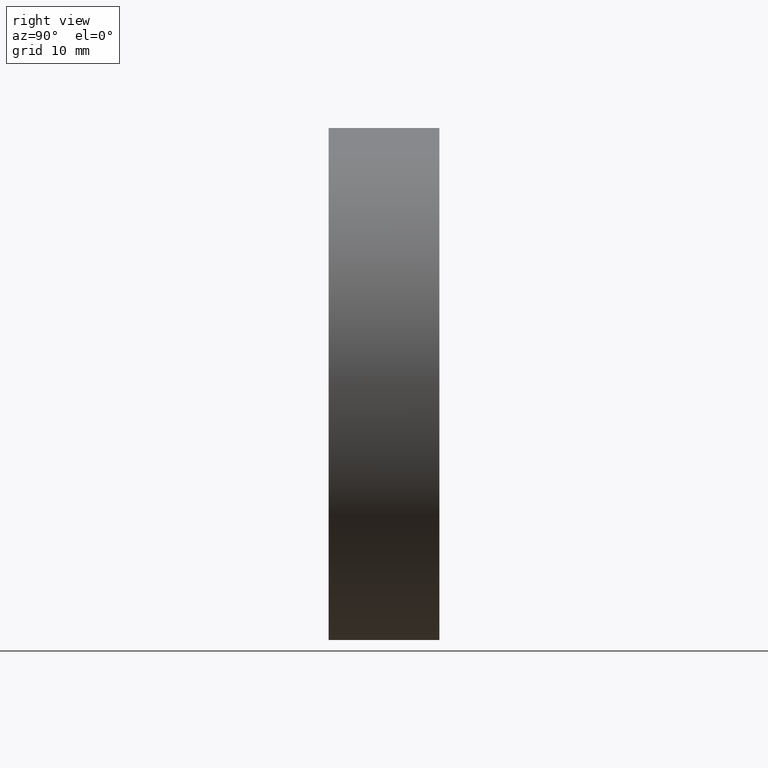
[diagram: clean part render]
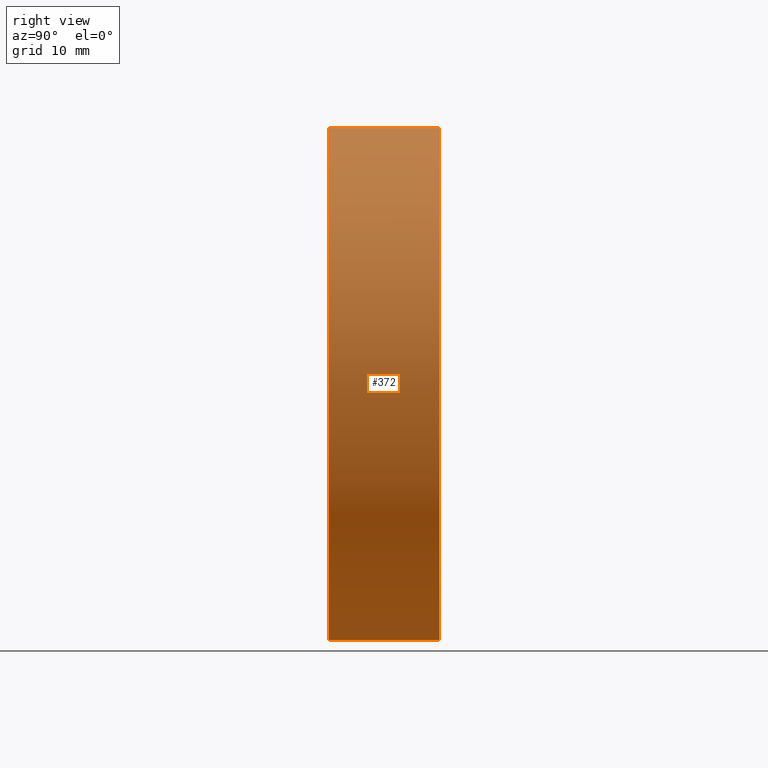
[diagram: same view with one face highlighted and labeled with its STEP entity id]
A machine part, right view. The second image highlights one B-rep face of the part: STEP entity #372.
In plain terms, the highlighted cylindrical surface (partial cylindrical patch) has radius 25.4 mm, axis along (-0, 1, -0).
Its self-contained STEP definition (entity closure, byte-faithful):
#26 = AXIS2_PLACEMENT_3D ( 'NONE', #393, #123, #116 ) ;
#27 = VECTOR ( 'NONE', #204, 1000.000000000000000 ) ;
#28 = CARTESIAN_POINT ( 'NONE',  ( 3.110602869834277300E-015, 10.99999999999999600, -25.40000000000000200 ) ) ;
#29 = EDGE_CURVE ( 'NONE', #130, #34, #366, .T. ) ;
#34 = VERTEX_POINT ( 'NONE', #28 ) ;
#39 = EDGE_CURVE ( 'NONE', #433, #313, #342, .T. ) ;
#41 = DIRECTION ( 'NONE',  ( 0.0000000000000000000, 0.0000000000000000000, 1.000000000000000000 ) ) ;
#67 = CARTESIAN_POINT ( 'NONE',  ( 0.0000000000000000000, 10.99999999999999600, 0.0000000000000000000 ) ) ;
#93 = CARTESIAN_POINT ( 'NONE',  ( 3.110602869834277300E-015, 60.02082041425541100, -25.40000000000000200 ) ) ;
#106 = AXIS2_PLACEMENT_3D ( 'NONE', #67, #195, #41 ) ;
#111 = CARTESIAN_POINT ( 'NONE',  ( 3.110602869834277300E-015, 0.0000000000000000000, -25.40000000000000200 ) ) ;
#116 = DIRECTION ( 'NONE',  ( 0.0000000000000000000, 0.0000000000000000000, 1.000000000000000000 ) ) ;
#120 = CIRCLE ( 'NONE', #106, 25.40000000000000200 ) ;
#123 = DIRECTION ( 'NONE',  ( -0.0000000000000000000, 1.000000000000000000, -0.0000000000000000000 ) ) ;
#124 = AXIS2_PLACEMENT_3D ( 'NONE', #226, #402, #394 ) ;
#130 = VERTEX_POINT ( 'NONE', #111 ) ;
#144 = CARTESIAN_POINT ( 'NONE',  ( 0.0000000000000000000, 0.0000000000000000000, 25.40000000000000200 ) ) ;
#171 = CARTESIAN_POINT ( 'NONE',  ( 0.0000000000000000000, 10.99999999999999600, 25.40000000000000200 ) ) ;
#183 = CARTESIAN_POINT ( 'NONE',  ( 0.0000000000000000000, 60.02082041425541100, 25.40000000000000200 ) ) ;
#193 = EDGE_CURVE ( 'NONE', #313, #34, #120, .T. ) ;
#195 = DIRECTION ( 'NONE',  ( -0.0000000000000000000, 1.000000000000000000, -0.0000000000000000000 ) ) ;
#203 = EDGE_LOOP ( 'NONE', ( #269, #299, #261, #256 ) ) ;
#204 = DIRECTION ( 'NONE',  ( -0.0000000000000000000, 1.000000000000000000, -0.0000000000000000000 ) ) ;
#226 = CARTESIAN_POINT ( 'NONE',  ( 0.0000000000000000000, 0.0000000000000000000, 0.0000000000000000000 ) ) ;
#256 = ORIENTED_EDGE ( 'NONE', *, *, #39, .F. ) ;
#259 = CIRCLE ( 'NONE', #124, 25.40000000000000200 ) ;
#261 = ORIENTED_EDGE ( 'NONE', *, *, #193, .F. ) ;
#269 = ORIENTED_EDGE ( 'NONE', *, *, #355, .T. ) ;
#299 = ORIENTED_EDGE ( 'NONE', *, *, #29, .T. ) ;
#313 = VERTEX_POINT ( 'NONE', #171 ) ;
#334 = DIRECTION ( 'NONE',  ( -0.0000000000000000000, 1.000000000000000000, -0.0000000000000000000 ) ) ;
#342 = LINE ( 'NONE', #183, #27 ) ;
#355 = EDGE_CURVE ( 'NONE', #433, #130, #259, .T. ) ;
#356 = FACE_OUTER_BOUND ( 'NONE', #203, .T. ) ;
#366 = LINE ( 'NONE', #93, #420 ) ;
#372 = ADVANCED_FACE ( 'NONE', ( #356 ), #404, .T. ) ;
#393 = CARTESIAN_POINT ( 'NONE',  ( 0.0000000000000000000, 60.02082041425541100, 0.0000000000000000000 ) ) ;
#394 = DIRECTION ( 'NONE',  ( 0.0000000000000000000, 0.0000000000000000000, 1.000000000000000000 ) ) ;
#402 = DIRECTION ( 'NONE',  ( -0.0000000000000000000, 1.000000000000000000, -0.0000000000000000000 ) ) ;
#404 = CYLINDRICAL_SURFACE ( 'NONE', #26, 25.40000000000000200 ) ;
#420 = VECTOR ( 'NONE', #334, 1000.000000000000000 ) ;
#433 = VERTEX_POINT ( 'NONE', #144 ) ;